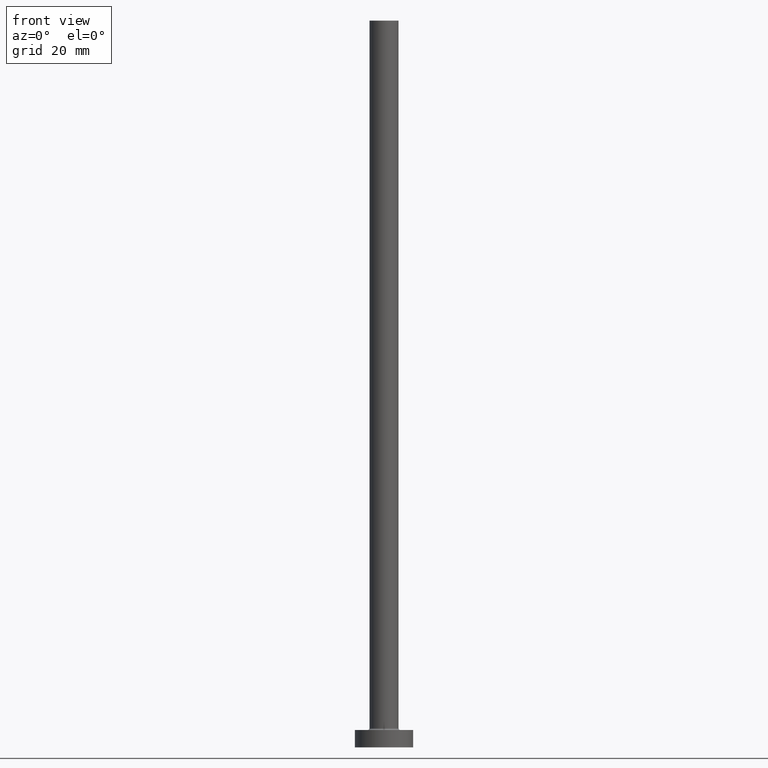
[diagram: clean part render]
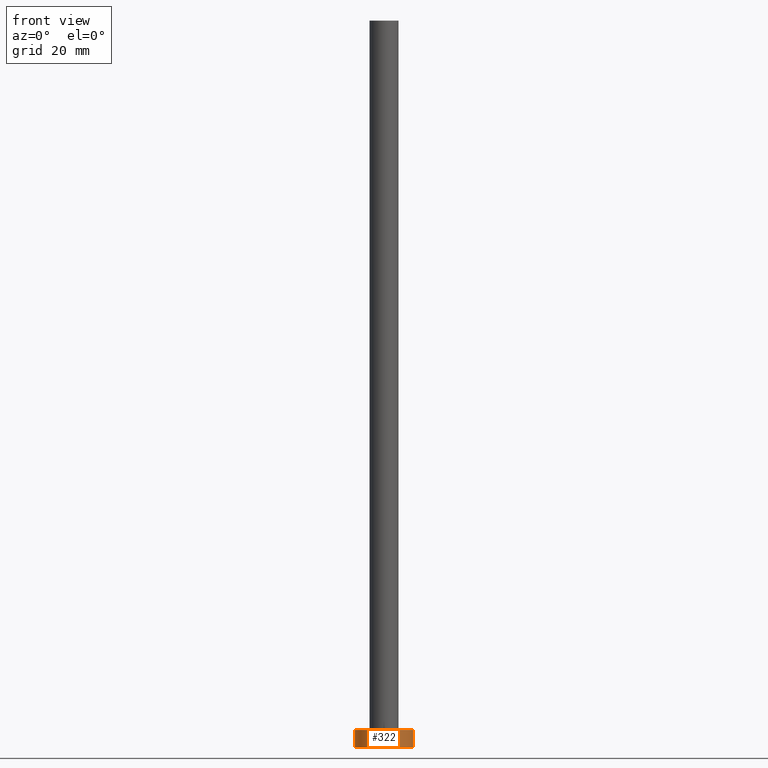
[diagram: same view with one face highlighted and labeled with its STEP entity id]
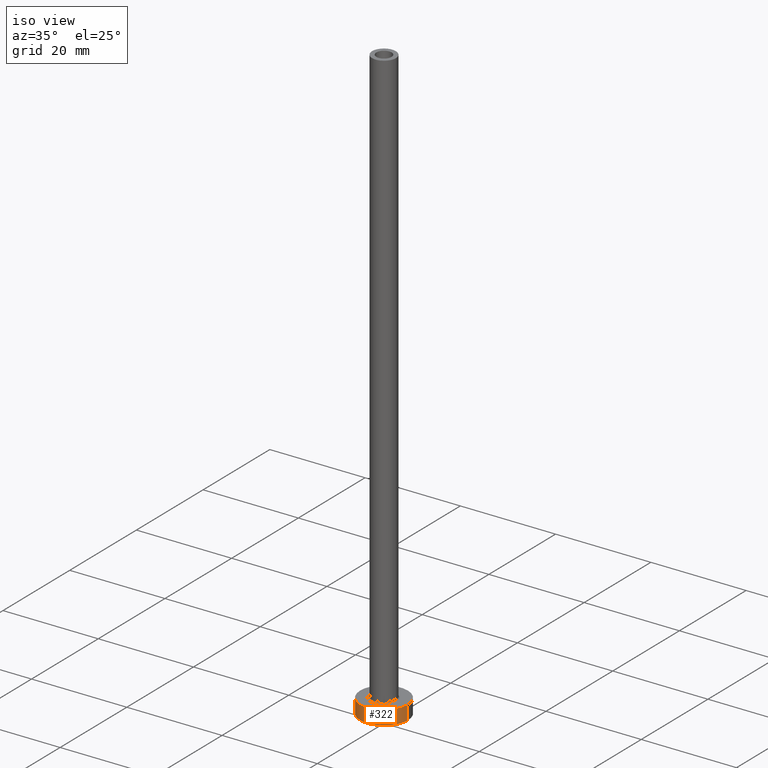
[diagram: same view with one face highlighted and labeled with its STEP entity id]
A machine part, front view. The second image highlights one B-rep face of the part: STEP entity #322.
A second angle (iso view) of the same face is appended — the face is thin or edge-on in the first view.
In plain terms, the highlighted cylindrical surface (edge-blend (fillet) strip) has radius 5 mm, axis along (-0, -0, -1).
Its self-contained STEP definition (entity closure, byte-faithful):
#1 = DIRECTION ( 'NONE',  ( -0.000000000000000000, -0.000000000000000000, -1.000000000000000000 ) ) ;
#3 = ORIENTED_EDGE ( 'NONE', *, *, #40, .T. ) ;
#7 = VERTEX_POINT ( 'NONE', #112 ) ;
#15 = CARTESIAN_POINT ( 'NONE',  ( 5.000000000000000000, 6.123233995736766282E-16, 0.000000000000000000 ) ) ;
#20 = VERTEX_POINT ( 'NONE', #15 ) ;
#39 = DIRECTION ( 'NONE',  ( 1.000000000000000000, 0.000000000000000000, 0.000000000000000000 ) ) ;
#40 = EDGE_CURVE ( 'NONE', #133, #7, #241, .T. ) ;
#50 = ORIENTED_EDGE ( 'NONE', *, *, #193, .F. ) ;
#54 = CARTESIAN_POINT ( 'NONE',  ( -5.000000000000000000, 0.000000000000000000, 3.000000000000000000 ) ) ;
#73 = CYLINDRICAL_SURFACE ( 'NONE', #249, 5.000000000000000000 ) ;
#91 = CARTESIAN_POINT ( 'NONE',  ( -5.000000000000000000, 0.000000000000000000, 3.000000000000000000 ) ) ;
#99 = DIRECTION ( 'NONE',  ( 1.000000000000000000, 0.000000000000000000, 0.000000000000000000 ) ) ;
#103 = ORIENTED_EDGE ( 'NONE', *, *, #175, .T. ) ;
#112 = CARTESIAN_POINT ( 'NONE',  ( -5.000000000000000000, 0.000000000000000000, 0.000000000000000000 ) ) ;
#118 = CARTESIAN_POINT ( 'NONE',  ( 0.000000000000000000, 0.000000000000000000, 3.000000000000000000 ) ) ;
#133 = VERTEX_POINT ( 'NONE', #91 ) ;
#175 = EDGE_CURVE ( 'NONE', #7, #20, #201, .T. ) ;
#177 = DIRECTION ( 'NONE',  ( 0.000000000000000000, 0.000000000000000000, 1.000000000000000000 ) ) ;
#187 = VERTEX_POINT ( 'NONE', #363 ) ;
#193 = EDGE_CURVE ( 'NONE', #187, #20, #424, .T. ) ;
#201 = CIRCLE ( 'NONE', #457, 5.000000000000000000 ) ;
#222 = DIRECTION ( 'NONE',  ( 0.000000000000000000, 0.000000000000000000, 1.000000000000000000 ) ) ;
#241 = LINE ( 'NONE', #54, #430 ) ;
#249 = AXIS2_PLACEMENT_3D ( 'NONE', #118, #1, #433 ) ;
#264 = ORIENTED_EDGE ( 'NONE', *, *, #428, .F. ) ;
#271 = FACE_OUTER_BOUND ( 'NONE', #412, .T. ) ;
#322 = ADVANCED_FACE ( 'NONE', ( #271 ), #73, .T. ) ;
#324 = CARTESIAN_POINT ( 'NONE',  ( 5.000000000000000000, 6.123233995736766282E-16, 3.000000000000000000 ) ) ;
#363 = CARTESIAN_POINT ( 'NONE',  ( 5.000000000000000000, 6.123233995736766282E-16, 3.000000000000000000 ) ) ;
#365 = CIRCLE ( 'NONE', #383, 5.000000000000000000 ) ;
#367 = CARTESIAN_POINT ( 'NONE',  ( 0.000000000000000000, 0.000000000000000000, 0.000000000000000000 ) ) ;
#383 = AXIS2_PLACEMENT_3D ( 'NONE', #407, #222, #39 ) ;
#390 = DIRECTION ( 'NONE',  ( -0.000000000000000000, -0.000000000000000000, -1.000000000000000000 ) ) ;
#407 = CARTESIAN_POINT ( 'NONE',  ( 0.000000000000000000, 0.000000000000000000, 3.000000000000000000 ) ) ;
#411 = DIRECTION ( 'NONE',  ( -0.000000000000000000, -0.000000000000000000, -1.000000000000000000 ) ) ;
#412 = EDGE_LOOP ( 'NONE', ( #50, #264, #3, #103 ) ) ;
#424 = LINE ( 'NONE', #324, #451 ) ;
#428 = EDGE_CURVE ( 'NONE', #133, #187, #365, .T. ) ;
#430 = VECTOR ( 'NONE', #411, 1000.000000000000000 ) ;
#433 = DIRECTION ( 'NONE',  ( -1.000000000000000000, 0.000000000000000000, 0.000000000000000000 ) ) ;
#451 = VECTOR ( 'NONE', #390, 1000.000000000000000 ) ;
#457 = AXIS2_PLACEMENT_3D ( 'NONE', #367, #177, #99 ) ;